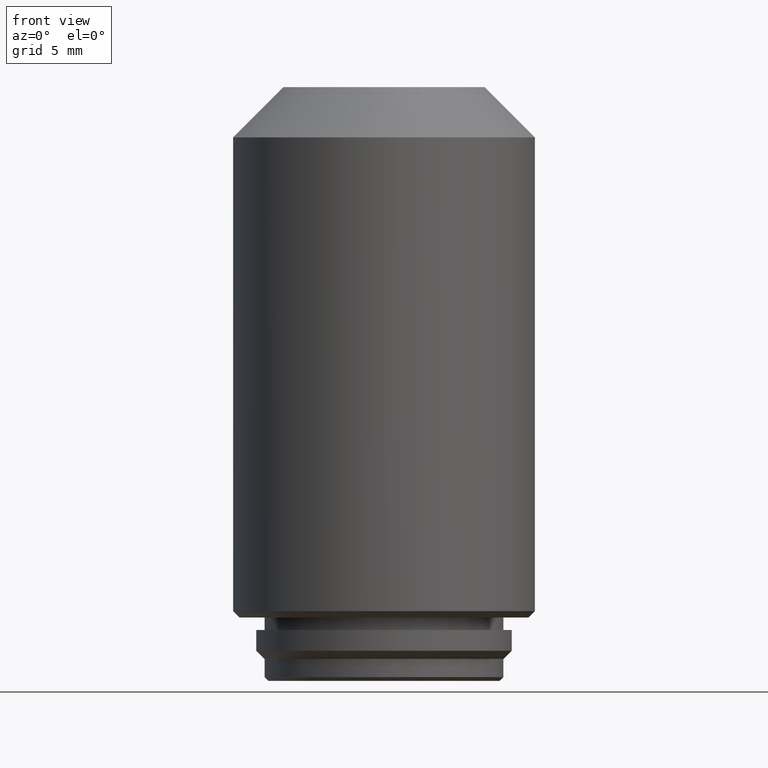
[diagram: clean part render]
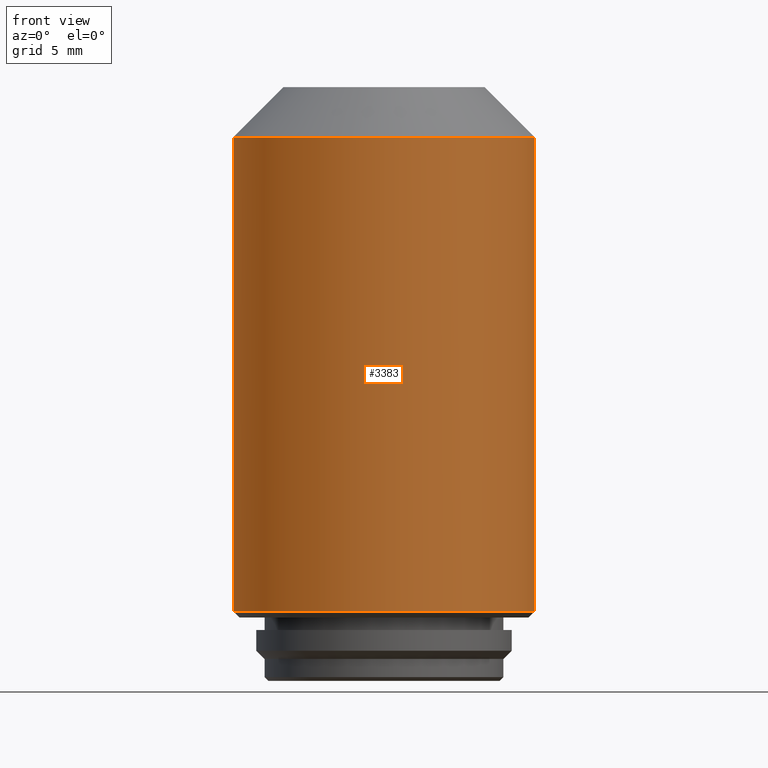
[diagram: same view with one face highlighted and labeled with its STEP entity id]
A machine part, front view. The second image highlights one B-rep face of the part: STEP entity #3383.
In plain terms, the highlighted cylindrical surface (partial cylindrical patch) has radius 12 mm, axis along (0, 0, -1).
Its self-contained STEP definition (entity closure, byte-faithful):
#3067 = CIRCLE ( 'NONE', #21203, 12.00000000000000000 ) ;
#3383 = ADVANCED_FACE ( 'NONE', ( #3936 ), #21563, .T. ) ;
#3936 = FACE_OUTER_BOUND ( 'NONE', #18048, .T. ) ;
#4172 = DIRECTION ( 'NONE',  ( -1.000000000000000000, 0.000000000000000000, 0.000000000000000000 ) ) ;
#5104 = CARTESIAN_POINT ( 'NONE',  ( 11.99999999999998579, 1.469576158976822172E-15, 43.25000000000000000 ) ) ;
#5334 = DIRECTION ( 'NONE',  ( -1.000000000000000000, 0.000000000000000000, 0.000000000000000000 ) ) ;
#5454 = CARTESIAN_POINT ( 'NONE',  ( 0.000000000000000000, 0.000000000000000000, 47.25000000000000000 ) ) ;
#5559 = LINE ( 'NONE', #17962, #18545 ) ;
#5971 = VERTEX_POINT ( 'NONE', #11803 ) ;
#6044 = VERTEX_POINT ( 'NONE', #8764 ) ;
#8492 = EDGE_CURVE ( 'NONE', #12380, #5971, #3067, .T. ) ;
#8764 = CARTESIAN_POINT ( 'NONE',  ( 12.00000000000000000, 0.000000000000000000, 5.549999999999999822 ) ) ;
#8901 = LINE ( 'NONE', #10777, #10040 ) ;
#9157 = ORIENTED_EDGE ( 'NONE', *, *, #18421, .T. ) ;
#10040 = VECTOR ( 'NONE', #15984, 1000.000000000000000 ) ;
#10680 = DIRECTION ( 'NONE',  ( 1.000000000000000000, 0.000000000000000000, 0.000000000000000000 ) ) ;
#10777 = CARTESIAN_POINT ( 'NONE',  ( 12.00000000000000000, 1.469576158976823947E-15, 47.25000000000000000 ) ) ;
#10828 = AXIS2_PLACEMENT_3D ( 'NONE', #5454, #14497, #4172 ) ;
#11512 = AXIS2_PLACEMENT_3D ( 'NONE', #12522, #22837, #5334 ) ;
#11803 = CARTESIAN_POINT ( 'NONE',  ( -11.99999999999998579, 0.000000000000000000, 43.25000000000000000 ) ) ;
#12380 = VERTEX_POINT ( 'NONE', #5104 ) ;
#12449 = EDGE_CURVE ( 'NONE', #20216, #6044, #17809, .T. ) ;
#12522 = CARTESIAN_POINT ( 'NONE',  ( 0.000000000000000000, 0.000000000000000000, 5.549999999999999822 ) ) ;
#13021 = ORIENTED_EDGE ( 'NONE', *, *, #12449, .T. ) ;
#14484 = DIRECTION ( 'NONE',  ( 0.000000000000000000, 0.000000000000000000, -1.000000000000000000 ) ) ;
#14497 = DIRECTION ( 'NONE',  ( 0.000000000000000000, 0.000000000000000000, -1.000000000000000000 ) ) ;
#14722 = ORIENTED_EDGE ( 'NONE', *, *, #8492, .T. ) ;
#15984 = DIRECTION ( 'NONE',  ( 0.000000000000000000, 0.000000000000000000, -1.000000000000000000 ) ) ;
#16435 = CARTESIAN_POINT ( 'NONE',  ( -12.00000000000000000, 1.469576158976823750E-15, 5.549999999999999822 ) ) ;
#16886 = EDGE_CURVE ( 'NONE', #12380, #6044, #8901, .T. ) ;
#17809 = CIRCLE ( 'NONE', #11512, 12.00000000000000000 ) ;
#17864 = DIRECTION ( 'NONE',  ( 0.000000000000000000, 0.000000000000000000, -1.000000000000000000 ) ) ;
#17962 = CARTESIAN_POINT ( 'NONE',  ( -12.00000000000000000, 0.000000000000000000, 47.25000000000000000 ) ) ;
#18048 = EDGE_LOOP ( 'NONE', ( #19394, #14722, #9157, #13021 ) ) ;
#18421 = EDGE_CURVE ( 'NONE', #5971, #20216, #5559, .T. ) ;
#18545 = VECTOR ( 'NONE', #14484, 1000.000000000000000 ) ;
#19394 = ORIENTED_EDGE ( 'NONE', *, *, #16886, .F. ) ;
#20216 = VERTEX_POINT ( 'NONE', #16435 ) ;
#21095 = CARTESIAN_POINT ( 'NONE',  ( 0.000000000000000000, 0.000000000000000000, 43.25000000000000000 ) ) ;
#21203 = AXIS2_PLACEMENT_3D ( 'NONE', #21095, #17864, #10680 ) ;
#21563 = CYLINDRICAL_SURFACE ( 'NONE', #10828, 12.00000000000000000 ) ;
#22837 = DIRECTION ( 'NONE',  ( 0.000000000000000000, 0.000000000000000000, 1.000000000000000000 ) ) ;